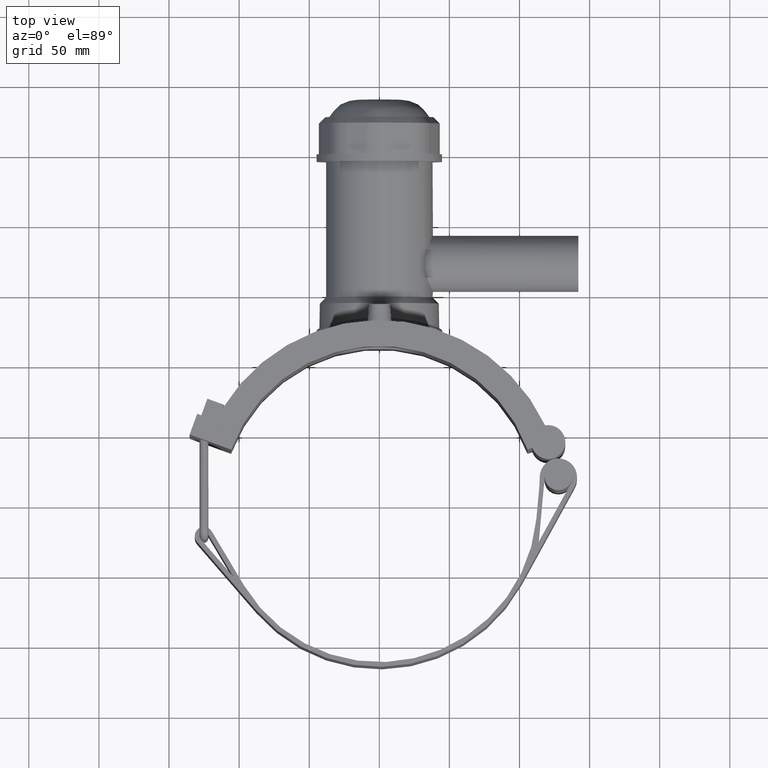
[diagram: clean part render]
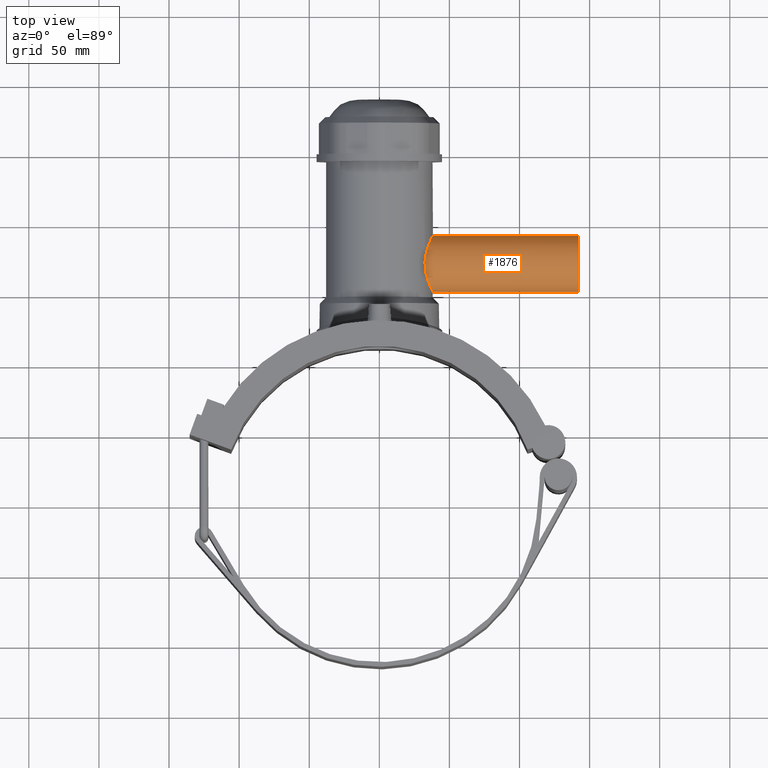
[diagram: same view with one face highlighted and labeled with its STEP entity id]
A machine part, top view. The second image highlights one B-rep face of the part: STEP entity #1876.
In plain terms, the highlighted cylindrical surface (bore or boss wall) has radius 20 mm, axis along (1, 0, 0).
Its self-contained STEP definition (entity closure, byte-faithful):
#364=FACE_BOUND('',#580,.T.);
#404=B_SPLINE_CURVE_WITH_KNOTS('',3,(#3004,#3005,#3006,#3007,#3008,#3009,
#3010,#3011,#3012,#3013,#3014,#3015,#3016,#3017,#3018,#3019,#3020,#3021,
#3022,#3023,#3024,#3025,#3026,#3027,#3028,#3029,#3030,#3031,#3032,#3033,
#3034,#3035,#3036,#3037,#3038,#3039,#3040,#3041,#3042,#3043,#3044,#3045,
#3046,#3047,#3048,#3049,#3050,#3051,#3052,#3053,#3054,#3055,#3056,#3057,
#3058,#3059,#3060,#3061,#3062,#3063,#3064,#3065,#3066,#3067,#3068,#3069),
 .UNSPECIFIED.,.T.,.F.,(4,2,2,2,2,2,2,2,2,2,2,2,2,2,2,2,2,2,2,2,2,2,2,2,
2,2,2,2,2,2,2,2,4),(0.,0.385881217534395,0.77176243506879,1.15764365260319,
1.54352487013758,1.92811361844322,2.31270236674885,2.69729111505448,3.08187986336012,
3.46646861166575,3.85105735997139,4.23564610827702,4.62023485658266,5.00611607411705,
5.39199729165145,5.77787850918584,6.16375972672024,6.54964094425463,6.93552216178903,
7.32140337932342,7.70728459685782,8.09187334516345,8.47646209346909,8.86105084177472,
9.24563959008036,9.63022833838599,10.0148170866916,10.3994058349973,10.7839945833029,
11.1698758008373,11.5557570183717,11.9416382359061,12.3275194534405),
 .UNSPECIFIED.);
#416=CYLINDRICAL_SURFACE('',#2001,20.);
#455=FACE_OUTER_BOUND('',#579,.T.);
#579=EDGE_LOOP('',(#1272));
#580=EDGE_LOOP('',(#1273));
#735=CIRCLE('',#2002,20.);
#824=VERTEX_POINT('',#3001);
#825=VERTEX_POINT('',#3003);
#1002=EDGE_CURVE('',#824,#824,#735,.T.);
#1003=EDGE_CURVE('',#825,#825,#404,.T.);
#1272=ORIENTED_EDGE('',*,*,#1002,.F.);
#1273=ORIENTED_EDGE('',*,*,#1003,.F.);
#1876=ADVANCED_FACE('',(#455,#364),#416,.T.);
#2001=AXIS2_PLACEMENT_3D('',#3000,#2220,#2221);
#2002=AXIS2_PLACEMENT_3D('',#3002,#2222,#2223);
#2220=DIRECTION('center_axis',(1.,0.,0.));
#2221=DIRECTION('ref_axis',(0.,1.,0.));
#2222=DIRECTION('center_axis',(1.,0.,0.));
#2223=DIRECTION('ref_axis',(0.,0.,-1.));
#3000=CARTESIAN_POINT('Origin',(71.,172.5,0.));
#3001=CARTESIAN_POINT('',(142.,192.5,0.));
#3002=CARTESIAN_POINT('Origin',(142.,172.5,0.));
#3003=CARTESIAN_POINT('',(32.6046392404517,172.5,-20.));
#3004=CARTESIAN_POINT('Ctrl Pts',(32.6046392404517,172.5,-20.));
#3005=CARTESIAN_POINT('Ctrl Pts',(32.6046392404517,171.213729274885,-20.));
#3006=CARTESIAN_POINT('Ctrl Pts',(32.6830054353828,169.894370406367,-19.8739797575775));
#3007=CARTESIAN_POINT('Ctrl Pts',(32.9930924726387,167.288991158601,-19.3548382666248));
#3008=CARTESIAN_POINT('Ctrl Pts',(33.2242517016418,166.002858971084,-18.9619428691751));
#3009=CARTESIAN_POINT('Ctrl Pts',(33.7897214736739,163.549726981932,-17.9349052246968));
#3010=CARTESIAN_POINT('Ctrl Pts',(34.1237331287694,162.380307293513,-17.299942726017));
#3011=CARTESIAN_POINT('Ctrl Pts',(34.8247911560756,160.222170498487,-15.8414362275232));
#3012=CARTESIAN_POINT('Ctrl Pts',(35.1911935245285,159.233396173591,-15.0176674210527));
#3013=CARTESIAN_POINT('Ctrl Pts',(35.8868207550614,157.485265082151,-13.2695363296134));
#3014=CARTESIAN_POINT('Ctrl Pts',(36.2420153459213,156.661928161718,-12.28222805458));
#3015=CARTESIAN_POINT('Ctrl Pts',(36.903263563274,155.202263010007,-10.1235340011065));
#3016=CARTESIAN_POINT('Ctrl Pts',(37.2088269071408,154.565822342738,-8.95207409683858));
#3017=CARTESIAN_POINT('Ctrl Pts',(37.715464315635,153.537031219694,-6.49462732335749));
#3018=CARTESIAN_POINT('Ctrl Pts',(37.9166638779146,153.143857072558,-5.20626324393437));
#3019=CARTESIAN_POINT('Ctrl Pts',(38.1840123500747,152.625250478286,-2.59995720150204));
#3020=CARTESIAN_POINT('Ctrl Pts',(38.25,152.5,-1.28196249435212));
#3021=CARTESIAN_POINT('Ctrl Pts',(38.25,152.5,1.28196249435211));
#3022=CARTESIAN_POINT('Ctrl Pts',(38.1840123500747,152.625250478286,2.59995720150204));
#3023=CARTESIAN_POINT('Ctrl Pts',(37.9166638779146,153.143857072558,5.20626324393437));
#3024=CARTESIAN_POINT('Ctrl Pts',(37.715464315635,153.537031219694,6.4946273233575));
#3025=CARTESIAN_POINT('Ctrl Pts',(37.2088269071408,154.565822342738,8.95207409683858));
#3026=CARTESIAN_POINT('Ctrl Pts',(36.903263563274,155.202263010007,10.1235340011065));
#3027=CARTESIAN_POINT('Ctrl Pts',(36.2420153459213,156.661928161718,12.2822280545799));
#3028=CARTESIAN_POINT('Ctrl Pts',(35.8868207550614,157.485265082151,13.2695363296133));
#3029=CARTESIAN_POINT('Ctrl Pts',(35.1911935245286,159.233396173591,15.0176674210527));
#3030=CARTESIAN_POINT('Ctrl Pts',(34.8247911560756,160.222170498487,15.8414362275231));
#3031=CARTESIAN_POINT('Ctrl Pts',(34.1237331287694,162.380307293513,17.2999427260169));
#3032=CARTESIAN_POINT('Ctrl Pts',(33.7897214736739,163.549726981931,17.9349052246968));
#3033=CARTESIAN_POINT('Ctrl Pts',(33.2242517016418,166.002858971084,18.9619428691751));
#3034=CARTESIAN_POINT('Ctrl Pts',(32.9930924726388,167.288991158601,19.3548382666248));
#3035=CARTESIAN_POINT('Ctrl Pts',(32.6830054353828,169.894370406367,19.8739797575775));
#3036=CARTESIAN_POINT('Ctrl Pts',(32.6046392404517,171.213729274885,20.));
#3037=CARTESIAN_POINT('Ctrl Pts',(32.6046392404517,173.786270725115,20.));
#3038=CARTESIAN_POINT('Ctrl Pts',(32.6830054353828,175.105629593633,19.8739797575775));
#3039=CARTESIAN_POINT('Ctrl Pts',(32.9930924726388,177.711008841399,19.3548382666248));
#3040=CARTESIAN_POINT('Ctrl Pts',(33.2242517016418,178.997141028916,18.9619428691751));
#3041=CARTESIAN_POINT('Ctrl Pts',(33.7897214736739,181.450273018068,17.9349052246968));
#3042=CARTESIAN_POINT('Ctrl Pts',(34.1237331287694,182.619692706487,17.299942726017));
#3043=CARTESIAN_POINT('Ctrl Pts',(34.8247911560756,184.777829501513,15.8414362275232));
#3044=CARTESIAN_POINT('Ctrl Pts',(35.1911935245286,185.766603826409,15.0176674210527));
#3045=CARTESIAN_POINT('Ctrl Pts',(35.8868207550614,187.514734917849,13.2695363296134));
#3046=CARTESIAN_POINT('Ctrl Pts',(36.2420153459213,188.338071838282,12.28222805458));
#3047=CARTESIAN_POINT('Ctrl Pts',(36.903263563274,189.797736989993,10.1235340011065));
#3048=CARTESIAN_POINT('Ctrl Pts',(37.2088269071408,190.434177657262,8.95207409683858));
#3049=CARTESIAN_POINT('Ctrl Pts',(37.715464315635,191.462968780306,6.49462732335749));
#3050=CARTESIAN_POINT('Ctrl Pts',(37.9166638779146,191.856142927442,5.20626324393438));
#3051=CARTESIAN_POINT('Ctrl Pts',(38.1840123500747,192.374749521714,2.59995720150206));
#3052=CARTESIAN_POINT('Ctrl Pts',(38.25,192.5,1.28196249435212));
#3053=CARTESIAN_POINT('Ctrl Pts',(38.25,192.5,-1.28196249435211));
#3054=CARTESIAN_POINT('Ctrl Pts',(38.1840123500747,192.374749521714,-2.59995720150204));
#3055=CARTESIAN_POINT('Ctrl Pts',(37.9166638779146,191.856142927442,-5.20626324393437));
#3056=CARTESIAN_POINT('Ctrl Pts',(37.715464315635,191.462968780306,-6.49462732335749));
#3057=CARTESIAN_POINT('Ctrl Pts',(37.2088269071408,190.434177657262,-8.95207409683858));
#3058=CARTESIAN_POINT('Ctrl Pts',(36.903263563274,189.797736989993,-10.1235340011065));
#3059=CARTESIAN_POINT('Ctrl Pts',(36.2420153459213,188.338071838282,-12.2822280545799));
#3060=CARTESIAN_POINT('Ctrl Pts',(35.8868207550614,187.514734917849,-13.2695363296133));
#3061=CARTESIAN_POINT('Ctrl Pts',(35.1911935245285,185.766603826409,-15.0176674210527));
#3062=CARTESIAN_POINT('Ctrl Pts',(34.8247911560756,184.777829501513,-15.8414362275232));
#3063=CARTESIAN_POINT('Ctrl Pts',(34.1237331287694,182.619692706487,-17.299942726017));
#3064=CARTESIAN_POINT('Ctrl Pts',(33.7897214736739,181.450273018068,-17.9349052246968));
#3065=CARTESIAN_POINT('Ctrl Pts',(33.2242517016418,178.997141028916,-18.9619428691751));
#3066=CARTESIAN_POINT('Ctrl Pts',(32.9930924726387,177.711008841399,-19.3548382666248));
#3067=CARTESIAN_POINT('Ctrl Pts',(32.6830054353828,175.105629593633,-19.8739797575775));
#3068=CARTESIAN_POINT('Ctrl Pts',(32.6046392404517,173.786270725115,-20.));
#3069=CARTESIAN_POINT('Ctrl Pts',(32.6046392404517,172.5,-20.));